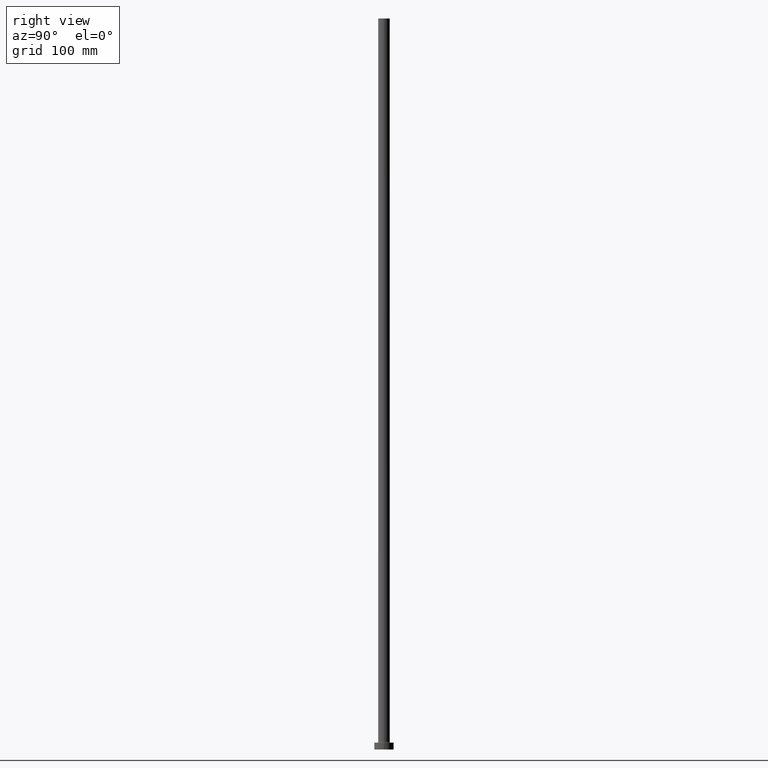
[diagram: clean part render]
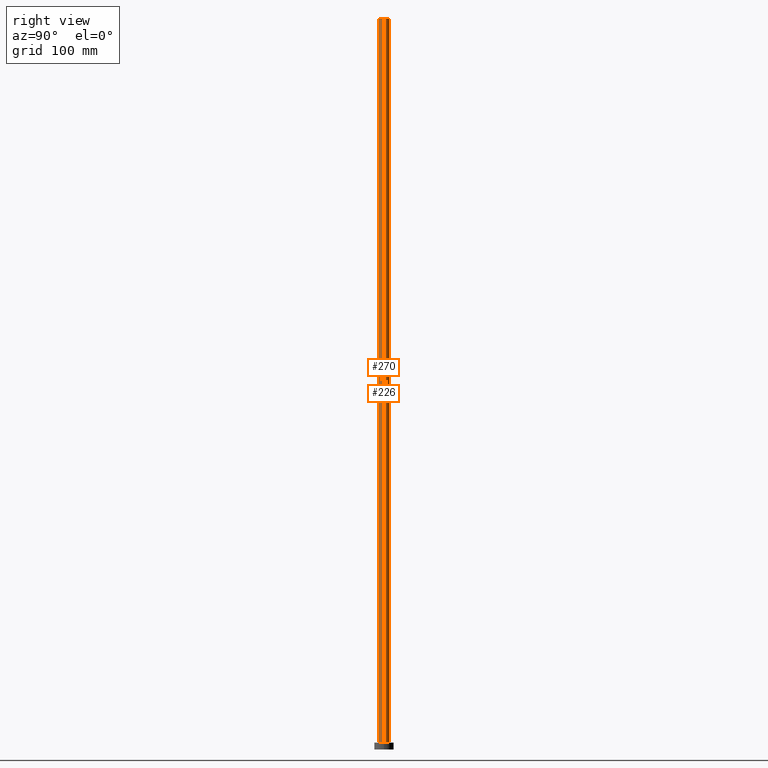
[diagram: same view with one multi-face feature highlighted, each face labeled with its STEP entity id]
A machine part, right view. The highlighted faces form ONE feature: a constant-radius fillet chain: 2 tangent blend faces with common blend radius 6 mm. The faces share edges in the B-rep.
Their STEP definitions:
[1] entity #270 (Cylinder):
#5 = CARTESIAN_POINT ( 'NONE',  ( -6.000000000000000888, 0.000000000000000000, 7.499999999999951150 ) ) ;
#23 = CIRCLE ( 'NONE', #399, 6.000000000000000888 ) ;
#48 = DIRECTION ( 'NONE',  ( 1.000000000000000000, 0.000000000000000000, 0.000000000000000000 ) ) ;
#55 = AXIS2_PLACEMENT_3D ( 'NONE', #65, #58, #165 ) ;
#58 = DIRECTION ( 'NONE',  ( -0.000000000000000000, -0.000000000000000000, -1.000000000000000000 ) ) ;
#65 = CARTESIAN_POINT ( 'NONE',  ( 0.000000000000000000, 0.000000000000000000, 750.0000000000000000 ) ) ;
#67 = VERTEX_POINT ( 'NONE', #359 ) ;
#108 = DIRECTION ( 'NONE',  ( 1.000000000000000000, 0.000000000000000000, 0.000000000000000000 ) ) ;
#127 = DIRECTION ( 'NONE',  ( -0.000000000000000000, -0.000000000000000000, -1.000000000000000000 ) ) ;
#165 = DIRECTION ( 'NONE',  ( -1.000000000000000000, 0.000000000000000000, 0.000000000000000000 ) ) ;
#167 = FACE_OUTER_BOUND ( 'NONE', #279, .T. ) ;
#171 = ORIENTED_EDGE ( 'NONE', *, *, #366, .F. ) ;
#179 = CARTESIAN_POINT ( 'NONE',  ( 6.000000000000000888, 7.347880794884119736E-16, 750.0000000000000000 ) ) ;
#183 = AXIS2_PLACEMENT_3D ( 'NONE', #286, #424, #108 ) ;
#186 = EDGE_CURVE ( 'NONE', #67, #221, #444, .T. ) ;
#215 = LINE ( 'NONE', #179, #455 ) ;
#221 = VERTEX_POINT ( 'NONE', #5 ) ;
#262 = ORIENTED_EDGE ( 'NONE', *, *, #389, .F. ) ;
#270 = ADVANCED_FACE ( 'NONE', ( #167 ), #377, .T. ) ;
#279 = EDGE_LOOP ( 'NONE', ( #262, #171, #427, #451 ) ) ;
#286 = CARTESIAN_POINT ( 'NONE',  ( 0.000000000000000000, 0.000000000000000000, 750.0000000000000000 ) ) ;
#288 = VERTEX_POINT ( 'NONE', #419 ) ;
#302 = DIRECTION ( 'NONE',  ( 0.000000000000000000, 0.000000000000000000, 1.000000000000000000 ) ) ;
#317 = VECTOR ( 'NONE', #127, 1000.000000000000000 ) ;
#319 = CIRCLE ( 'NONE', #183, 6.000000000000000888 ) ;
#349 = VERTEX_POINT ( 'NONE', #448 ) ;
#355 = DIRECTION ( 'NONE',  ( -0.000000000000000000, -0.000000000000000000, -1.000000000000000000 ) ) ;
#359 = CARTESIAN_POINT ( 'NONE',  ( -6.000000000000000888, 0.000000000000000000, 750.0000000000000000 ) ) ;
#366 = EDGE_CURVE ( 'NONE', #67, #349, #319, .T. ) ;
#369 = CARTESIAN_POINT ( 'NONE',  ( -6.000000000000000888, 0.000000000000000000, 750.0000000000000000 ) ) ;
#377 = CYLINDRICAL_SURFACE ( 'NONE', #55, 6.000000000000000888 ) ;
#389 = EDGE_CURVE ( 'NONE', #349, #288, #215, .T. ) ;
#399 = AXIS2_PLACEMENT_3D ( 'NONE', #439, #302, #48 ) ;
#401 = EDGE_CURVE ( 'NONE', #221, #288, #23, .T. ) ;
#419 = CARTESIAN_POINT ( 'NONE',  ( 6.000000000000000888, 7.347880794884119736E-16, 7.499999999999951150 ) ) ;
#424 = DIRECTION ( 'NONE',  ( 0.000000000000000000, 0.000000000000000000, 1.000000000000000000 ) ) ;
#427 = ORIENTED_EDGE ( 'NONE', *, *, #186, .T. ) ;
#439 = CARTESIAN_POINT ( 'NONE',  ( 0.000000000000000000, 0.000000000000000000, 7.499999999999951150 ) ) ;
#444 = LINE ( 'NONE', #369, #317 ) ;
#448 = CARTESIAN_POINT ( 'NONE',  ( 6.000000000000000888, 7.347880794884119736E-16, 750.0000000000000000 ) ) ;
#451 = ORIENTED_EDGE ( 'NONE', *, *, #401, .T. ) ;
#455 = VECTOR ( 'NONE', #355, 1000.000000000000000 ) ;
[2] entity #226 (Cylinder):
#5 = CARTESIAN_POINT ( 'NONE',  ( -6.000000000000000888, 0.000000000000000000, 7.499999999999951150 ) ) ;
#51 = DIRECTION ( 'NONE',  ( 0.000000000000000000, 0.000000000000000000, 1.000000000000000000 ) ) ;
#67 = VERTEX_POINT ( 'NONE', #359 ) ;
#103 = DIRECTION ( 'NONE',  ( -1.000000000000000000, 0.000000000000000000, 0.000000000000000000 ) ) ;
#124 = EDGE_CURVE ( 'NONE', #288, #221, #161, .T. ) ;
#127 = DIRECTION ( 'NONE',  ( -0.000000000000000000, -0.000000000000000000, -1.000000000000000000 ) ) ;
#136 = CARTESIAN_POINT ( 'NONE',  ( 0.000000000000000000, 0.000000000000000000, 750.0000000000000000 ) ) ;
#150 = ORIENTED_EDGE ( 'NONE', *, *, #124, .T. ) ;
#161 = CIRCLE ( 'NONE', #418, 6.000000000000000888 ) ;
#179 = CARTESIAN_POINT ( 'NONE',  ( 6.000000000000000888, 7.347880794884119736E-16, 750.0000000000000000 ) ) ;
#186 = EDGE_CURVE ( 'NONE', #67, #221, #444, .T. ) ;
#198 = DIRECTION ( 'NONE',  ( -0.000000000000000000, -0.000000000000000000, -1.000000000000000000 ) ) ;
#215 = LINE ( 'NONE', #179, #455 ) ;
#221 = VERTEX_POINT ( 'NONE', #5 ) ;
#222 = AXIS2_PLACEMENT_3D ( 'NONE', #136, #198, #103 ) ;
#226 = ADVANCED_FACE ( 'NONE', ( #232 ), #372, .T. ) ;
#229 = EDGE_CURVE ( 'NONE', #349, #67, #393, .T. ) ;
#232 = FACE_OUTER_BOUND ( 'NONE', #255, .T. ) ;
#249 = DIRECTION ( 'NONE',  ( 0.000000000000000000, 0.000000000000000000, 1.000000000000000000 ) ) ;
#255 = EDGE_LOOP ( 'NONE', ( #283, #325, #150, #343 ) ) ;
#257 = AXIS2_PLACEMENT_3D ( 'NONE', #340, #249, #446 ) ;
#283 = ORIENTED_EDGE ( 'NONE', *, *, #229, .F. ) ;
#288 = VERTEX_POINT ( 'NONE', #419 ) ;
#299 = CARTESIAN_POINT ( 'NONE',  ( 0.000000000000000000, 0.000000000000000000, 7.499999999999951150 ) ) ;
#317 = VECTOR ( 'NONE', #127, 1000.000000000000000 ) ;
#325 = ORIENTED_EDGE ( 'NONE', *, *, #389, .T. ) ;
#340 = CARTESIAN_POINT ( 'NONE',  ( 0.000000000000000000, 0.000000000000000000, 750.0000000000000000 ) ) ;
#343 = ORIENTED_EDGE ( 'NONE', *, *, #186, .F. ) ;
#349 = VERTEX_POINT ( 'NONE', #448 ) ;
#355 = DIRECTION ( 'NONE',  ( -0.000000000000000000, -0.000000000000000000, -1.000000000000000000 ) ) ;
#359 = CARTESIAN_POINT ( 'NONE',  ( -6.000000000000000888, 0.000000000000000000, 750.0000000000000000 ) ) ;
#369 = CARTESIAN_POINT ( 'NONE',  ( -6.000000000000000888, 0.000000000000000000, 750.0000000000000000 ) ) ;
#372 = CYLINDRICAL_SURFACE ( 'NONE', #222, 6.000000000000000888 ) ;
#389 = EDGE_CURVE ( 'NONE', #349, #288, #215, .T. ) ;
#393 = CIRCLE ( 'NONE', #257, 6.000000000000000888 ) ;
#418 = AXIS2_PLACEMENT_3D ( 'NONE', #299, #51, #437 ) ;
#419 = CARTESIAN_POINT ( 'NONE',  ( 6.000000000000000888, 7.347880794884119736E-16, 7.499999999999951150 ) ) ;
#437 = DIRECTION ( 'NONE',  ( 1.000000000000000000, 0.000000000000000000, 0.000000000000000000 ) ) ;
#444 = LINE ( 'NONE', #369, #317 ) ;
#446 = DIRECTION ( 'NONE',  ( 1.000000000000000000, 0.000000000000000000, 0.000000000000000000 ) ) ;
#448 = CARTESIAN_POINT ( 'NONE',  ( 6.000000000000000888, 7.347880794884119736E-16, 750.0000000000000000 ) ) ;
#455 = VECTOR ( 'NONE', #355, 1000.000000000000000 ) ;